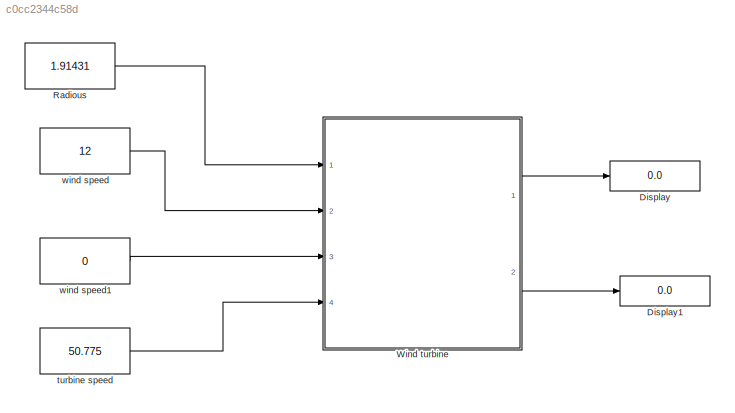
MODEL slx_c0cc2344c58d
KIND model
BLOCK [Display] Display
  Decimation = 1
  Ports = [1]
BLOCK [Display] Display1
  Decimation = 1
  Ports = [1]
BLOCK [Constant] Radious
  Value = 1.91431
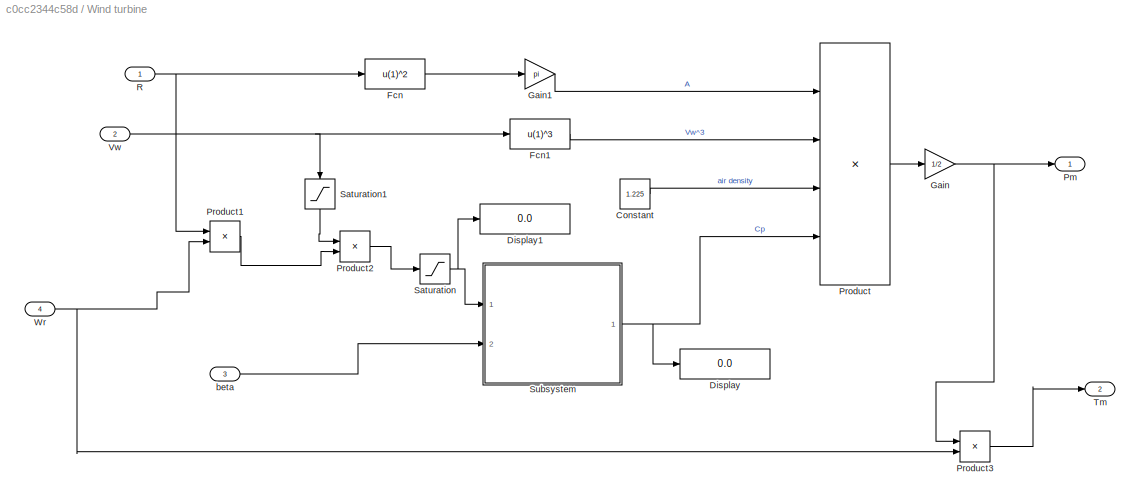
BLOCK [SubSystem] Wind turbine
  Ports = [4, 2]
  RequestExecContextInheritance = off
BLOCK [Constant] Wind turbine/Constant
  Value = 1.225
BLOCK [Display] Wind turbine/Display
  Decimation = 1
  Ports = [1]
BLOCK [Display] Wind turbine/Display1
  Decimation = 1
  Ports = [1]
BLOCK [Fcn] Wind turbine/Fcn
  Expr = u(1)^2
BLOCK [Fcn] Wind turbine/Fcn1
  Expr = u(1)^3
BLOCK [Gain] Wind turbine/Gain
  Gain = 1/2
  OutDataTypeStr = Inherit: Inherit via internal rule
  ParamDataTypeStr = Inherit: Inherit via internal rule
  SaturateOnIntegerOverflow = off
BLOCK [Gain] Wind turbine/Gain1
  Gain = pi
  OutDataTypeStr = Inherit: Inherit via internal rule
  ParamDataTypeStr = Inherit: Inherit via internal rule
  SaturateOnIntegerOverflow = off
BLOCK [Outport] Wind turbine/Pm
  IconDisplay = Port number
BLOCK [Product] Wind turbine/Product
  InputSameDT = off
  Inputs = 4
  OutDataTypeStr = Inherit: Inherit via internal rule
  Ports = [4, 1]
  RndMeth = Floor
  SaturateOnIntegerOverflow = off
BLOCK [Product] Wind turbine/Product1
  InputSameDT = off
  OutDataTypeStr = Inherit: Inherit via internal rule
  Ports = [2, 1]
  RndMeth = Floor
  SaturateOnIntegerOverflow = off
BLOCK [Product] Wind turbine/Product2
  InputSameDT = off
  Inputs = /*
  OutDataTypeStr = Inherit: Inherit via internal rule
  Ports = [2, 1]
  RndMeth = Floor
  SaturateOnIntegerOverflow = off
BLOCK [Product] Wind turbine/Product3
  InputSameDT = off
  OutDataTypeStr = Inherit: Inherit via internal rule
  Ports = [2, 1]
  RndMeth = Floor
  SaturateOnIntegerOverflow = off
BLOCK [Inport] Wind turbine/R
  IconDisplay = Port number
BLOCK [Saturate] Wind turbine/Saturation
  InputPortMap = u0
  LowerLimit = 1e-6
  Ports = [1, 1]
  UpperLimit = inf
BLOCK [Saturate] Wind turbine/Saturation1
  InputPortMap = u0
  LowerLimit = 1e-6
  Ports = [1, 1]
  UpperLimit = inf
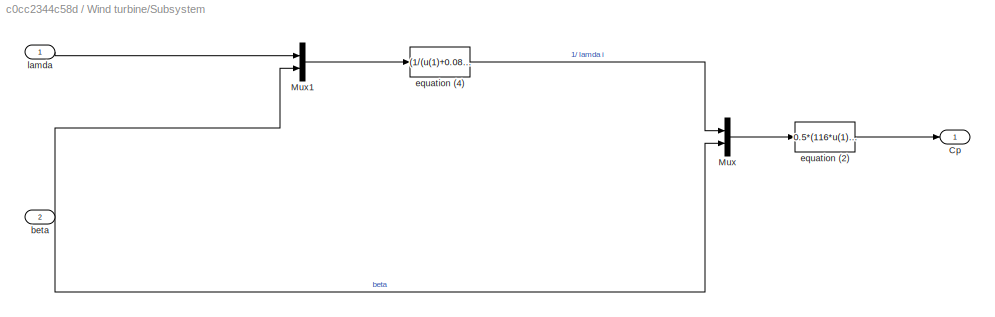
BLOCK [SubSystem] Wind turbine/Subsystem
  Ports = [2, 1]
  RequestExecContextInheritance = off
BLOCK [Outport] Wind turbine/Subsystem/Cp
  IconDisplay = Port number
BLOCK [Mux] Wind turbine/Subsystem/Mux
  DisplayOption = bar
  Inputs = 2
  Ports = [2, 1]
BLOCK [Mux] Wind turbine/Subsystem/Mux1
  DisplayOption = bar
  Inputs = 2
  Ports = [2, 1]
BLOCK [Inport] Wind turbine/Subsystem/beta
  IconDisplay = Port number
  Port = 2
BLOCK [Fcn] Wind turbine/Subsystem/equation (2)
  Expr = 0.5*(116*u(1)-0.4*u(2)-5)*exp(-21*u(1))
BLOCK [Fcn] Wind turbine/Subsystem/equation (4)
  Expr = (1/(u(1)+0.08*u(2)))-(0.035/((u(2)^3)+1))
BLOCK [Inport] Wind turbine/Subsystem/lamda
  IconDisplay = Port number
BLOCK [Outport] Wind turbine/Tm
  IconDisplay = Port number
  Port = 2
BLOCK [Inport] Wind turbine/Vw
  IconDisplay = Port number
  Port = 2
BLOCK [Inport] Wind turbine/Wr
  IconDisplay = Port number
  Port = 4
BLOCK [Inport] Wind turbine/beta
  IconDisplay = Port number
  Port = 3
BLOCK [Constant] turbine speed
  Value = 50.775
BLOCK [Constant] wind speed
  Value = 12
BLOCK [Constant] wind speed1
  Value = 0
LINE Radious:1 -> Wind turbine:1
LINE Wind turbine/Constant:1 -> Wind turbine/Product:3
LINE Wind turbine/Fcn1:1 -> Wind turbine/Product:2
LINE Wind turbine/Fcn:1 -> Wind turbine/Gain1:1
LINE Wind turbine/Gain1:1 -> Wind turbine/Product:1
NET Wind turbine/Gain:1 -> Wind turbine/Pm:1, Wind turbine/Product3:1
LINE Wind turbine/Product1:1 -> Wind turbine/Product2:2
LINE Wind turbine/Product2:1 -> Wind turbine/Saturation:1
LINE Wind turbine/Product3:1 -> Wind turbine/Tm:1
LINE Wind turbine/Product:1 -> Wind turbine/Gain:1
NET Wind turbine/R:1 -> Wind turbine/Fcn:1, Wind turbine/Product1:1
LINE Wind turbine/Saturation1:1 -> Wind turbine/Product2:1
NET Wind turbine/Saturation:1 -> Wind turbine/Display1:1, Wind turbine/Subsystem:1
LINE Wind turbine/Subsystem/Mux1:1 -> Wind turbine/Subsystem/equation (4):1
LINE Wind turbine/Subsystem/Mux:1 -> Wind turbine/Subsystem/equation (2):1
NET Wind turbine/Subsystem/beta:1 -> Wind turbine/Subsystem/Mux1:2, Wind turbine/Subsystem/Mux:2
LINE Wind turbine/Subsystem/equation (2):1 -> Wind turbine/Subsystem/Cp:1
LINE Wind turbine/Subsystem/equation (4):1 -> Wind turbine/Subsystem/Mux:1
LINE Wind turbine/Subsystem/lamda:1 -> Wind turbine/Subsystem/Mux1:1
NET Wind turbine/Subsystem:1 -> Wind turbine/Display:1, Wind turbine/Product:4
NET Wind turbine/Vw:1 -> Wind turbine/Fcn1:1, Wind turbine/Saturation1:1
NET Wind turbine/Wr:1 -> Wind turbine/Product1:2, Wind turbine/Product3:2
LINE Wind turbine/beta:1 -> Wind turbine/Subsystem:2
LINE Wind turbine:1 -> Display:1
LINE Wind turbine:2 -> Display1:1
LINE turbine speed:1 -> Wind turbine:4
LINE wind speed1:1 -> Wind turbine:3
LINE wind speed:1 -> Wind turbine:2
note: NET lines group one-source signal fan-out (src -> all destinations, sorted); 1:1 wires keep LINE
